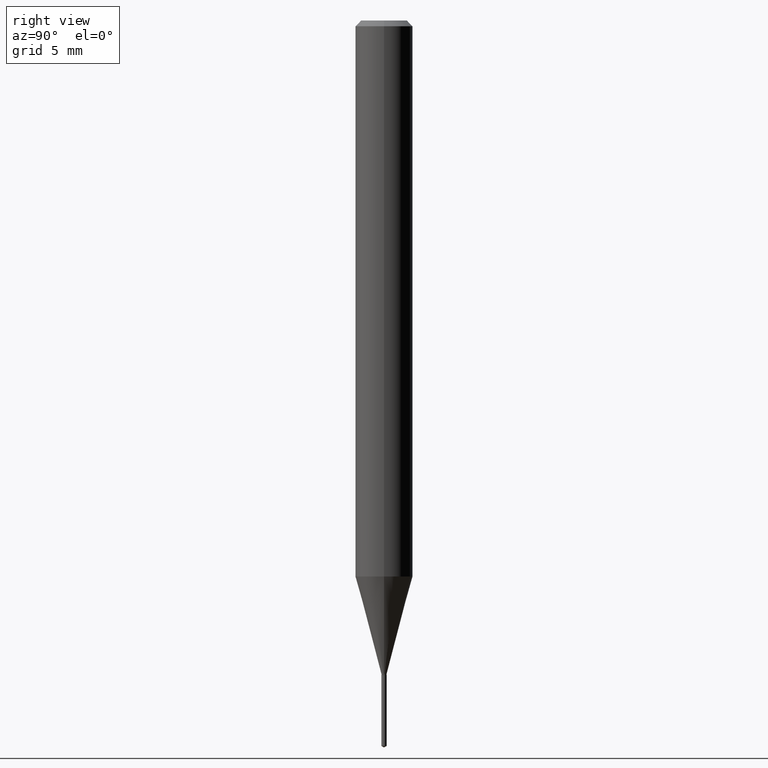
[diagram: clean part render]
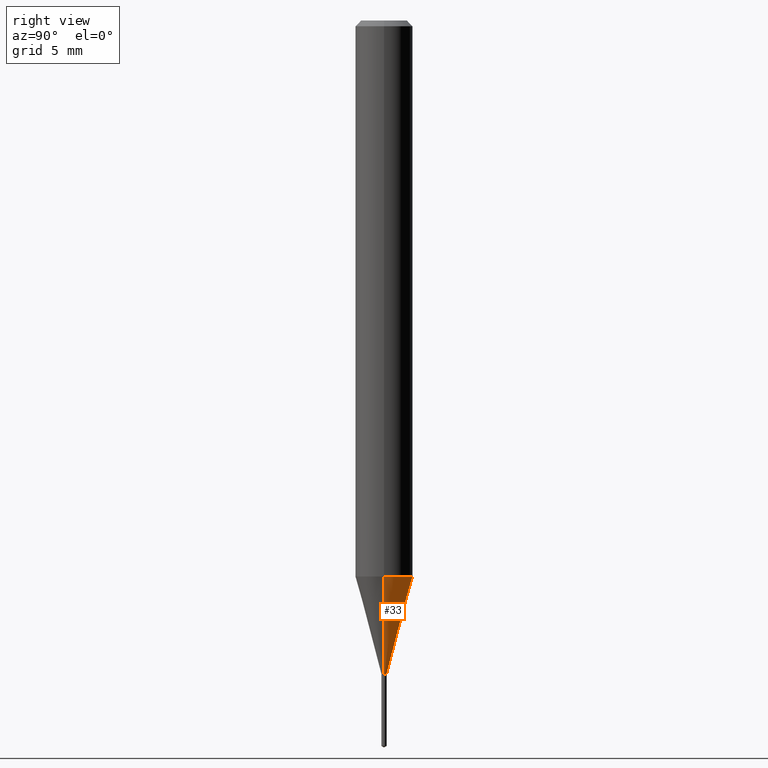
[diagram: same view with one face highlighted and labeled with its STEP entity id]
A machine part, right view. The second image highlights one B-rep face of the part: STEP entity #33.
In plain terms, the highlighted conical surface has half-angle 15 deg.
Its self-contained STEP definition (entity closure, byte-faithful):
#1 = CONICAL_SURFACE ( 'NONE', #304, 0.005300000000000000891, 0.2617993877991500740 ) ;
#9 = VECTOR ( 'NONE', #86, 39.37007874015747433 ) ;
#17 = ORIENTED_EDGE ( 'NONE', *, *, #410, .F. ) ;
#27 = DIRECTION ( 'NONE',  ( 1.000000000000000000, -6.982962677686350330E-15, 0.000000000000000000 ) ) ;
#33 = ADVANCED_FACE ( 'NONE', ( #174 ), #1, .T. ) ;
#48 = DIRECTION ( 'NONE',  ( 0.2588190451025213501, 1.565188264969621968E-15, 0.9659258262890682012 ) ) ;
#86 = DIRECTION ( 'NONE',  ( -0.2588190451025213501, 5.211531920934551042E-15, 0.9659258262890682012 ) ) ;
#118 = VECTOR ( 'NONE', #48, 39.37007874015747433 ) ;
#120 = CIRCLE ( 'NONE', #224, 0.005300000000000000891 ) ;
#121 = VERTEX_POINT ( 'NONE', #484 ) ;
#129 = DIRECTION ( 'NONE',  ( 1.000000000000000000, -6.982962677686264344E-15, 0.000000000000000000 ) ) ;
#146 = DIRECTION ( 'NONE',  ( 1.000000000000000000, -6.982962677686350330E-15, 0.000000000000000000 ) ) ;
#165 = LINE ( 'NONE', #393, #9 ) ;
#174 = FACE_OUTER_BOUND ( 'NONE', #300, .T. ) ;
#220 = CARTESIAN_POINT ( 'NONE',  ( 0.005300000000000000891, -4.732702954801883924E-15, -1.344899999999999984 ) ) ;
#224 = AXIS2_PLACEMENT_3D ( 'NONE', #259, #294, #146 ) ;
#231 = LINE ( 'NONE', #387, #118 ) ;
#259 = CARTESIAN_POINT ( 'NONE',  ( 3.288910997438389961E-29, -4.695693252610146470E-15, -1.344899999999999984 ) ) ;
#260 = ORIENTED_EDGE ( 'NONE', *, *, #374, .T. ) ;
#294 = DIRECTION ( 'NONE',  ( -2.445468806185136597E-29, 3.491481338843145583E-15, 1.000000000000000000 ) ) ;
#298 = EDGE_CURVE ( 'NONE', #121, #460, #165, .T. ) ;
#300 = EDGE_LOOP ( 'NONE', ( #260, #361, #17, #315 ) ) ;
#304 = AXIS2_PLACEMENT_3D ( 'NONE', #444, #365, #27 ) ;
#306 = EDGE_CURVE ( 'NONE', #390, #426, #231, .T. ) ;
#313 = AXIS2_PLACEMENT_3D ( 'NONE', #337, #487, #129 ) ;
#315 = ORIENTED_EDGE ( 'NONE', *, *, #306, .F. ) ;
#337 = CARTESIAN_POINT ( 'NONE',  ( 2.798355503914224078E-29, -3.995310018534680444E-15, -1.144302269093172786 ) ) ;
#361 = ORIENTED_EDGE ( 'NONE', *, *, #298, .T. ) ;
#365 = DIRECTION ( 'NONE',  ( -2.445468806185136597E-29, 3.491481338843145583E-15, 1.000000000000000000 ) ) ;
#374 = EDGE_CURVE ( 'NONE', #390, #121, #120, .T. ) ;
#383 = CIRCLE ( 'NONE', #313, 0.05905000000000013710 ) ;
#387 = CARTESIAN_POINT ( 'NONE',  ( 0.005300000000000000891, -4.732702954801883924E-15, -1.344899999999999984 ) ) ;
#390 = VERTEX_POINT ( 'NONE', #220 ) ;
#393 = CARTESIAN_POINT ( 'NONE',  ( -0.005300000000000000891, -4.658034487614861364E-15, -1.344899999999999984 ) ) ;
#410 = EDGE_CURVE ( 'NONE', #426, #460, #383, .T. ) ;
#413 = CARTESIAN_POINT ( 'NONE',  ( -0.05905000000000013710, -3.575734533068340951E-15, -1.144302269093172786 ) ) ;
#426 = VERTEX_POINT ( 'NONE', #457 ) ;
#444 = CARTESIAN_POINT ( 'NONE',  ( 3.288910997438389961E-29, -4.695693252610146470E-15, -1.344899999999999984 ) ) ;
#457 = CARTESIAN_POINT ( 'NONE',  ( 0.05905000000000013710, -4.407653964652056153E-15, -1.144302269093172786 ) ) ;
#460 = VERTEX_POINT ( 'NONE', #413 ) ;
#484 = CARTESIAN_POINT ( 'NONE',  ( -0.005300000000000000891, -4.659954802351225412E-15, -1.344899999999999984 ) ) ;
#487 = DIRECTION ( 'NONE',  ( -2.445468806185136597E-29, 3.491481338843145583E-15, 1.000000000000000000 ) ) ;